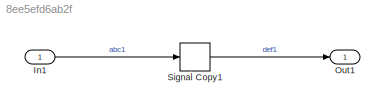
MODEL slx_8ee5efd6ab2f
KIND model
CONFIG AbsTol = auto
CONFIG EnableMultiTasking = off
CONFIG FixedStep = 0.1
CONFIG MaxStep = auto
CONFIG MinStep = auto
CONFIG PreLoadFcn = load test_data.mat;
CONFIG RelTol = 1e-3
CONFIG SampleTimeConstraint = Unconstrained
CONFIG Solver = FixedStepDiscrete
CONFIG SolverName = FixedStepDiscrete
CONFIG StartTime = 0.0
CONFIG StopTime = 10.0
BLOCK [Inport] In1
  BusOutputAsStruct = on
  IconDisplay = Port number
  OutDataTypeStr = Bus: NestedBus
BLOCK [Outport] Out1
  BusOutputAsStruct = on
  IconDisplay = Port number
  OutDataTypeStr = Bus: NestedBus
BLOCK [SignalConversion] Signal Copy1
  OverrideOpt = off
LINE In1:1 -> Signal Copy1:1
LINE Signal Copy1:1 -> Out1:1
